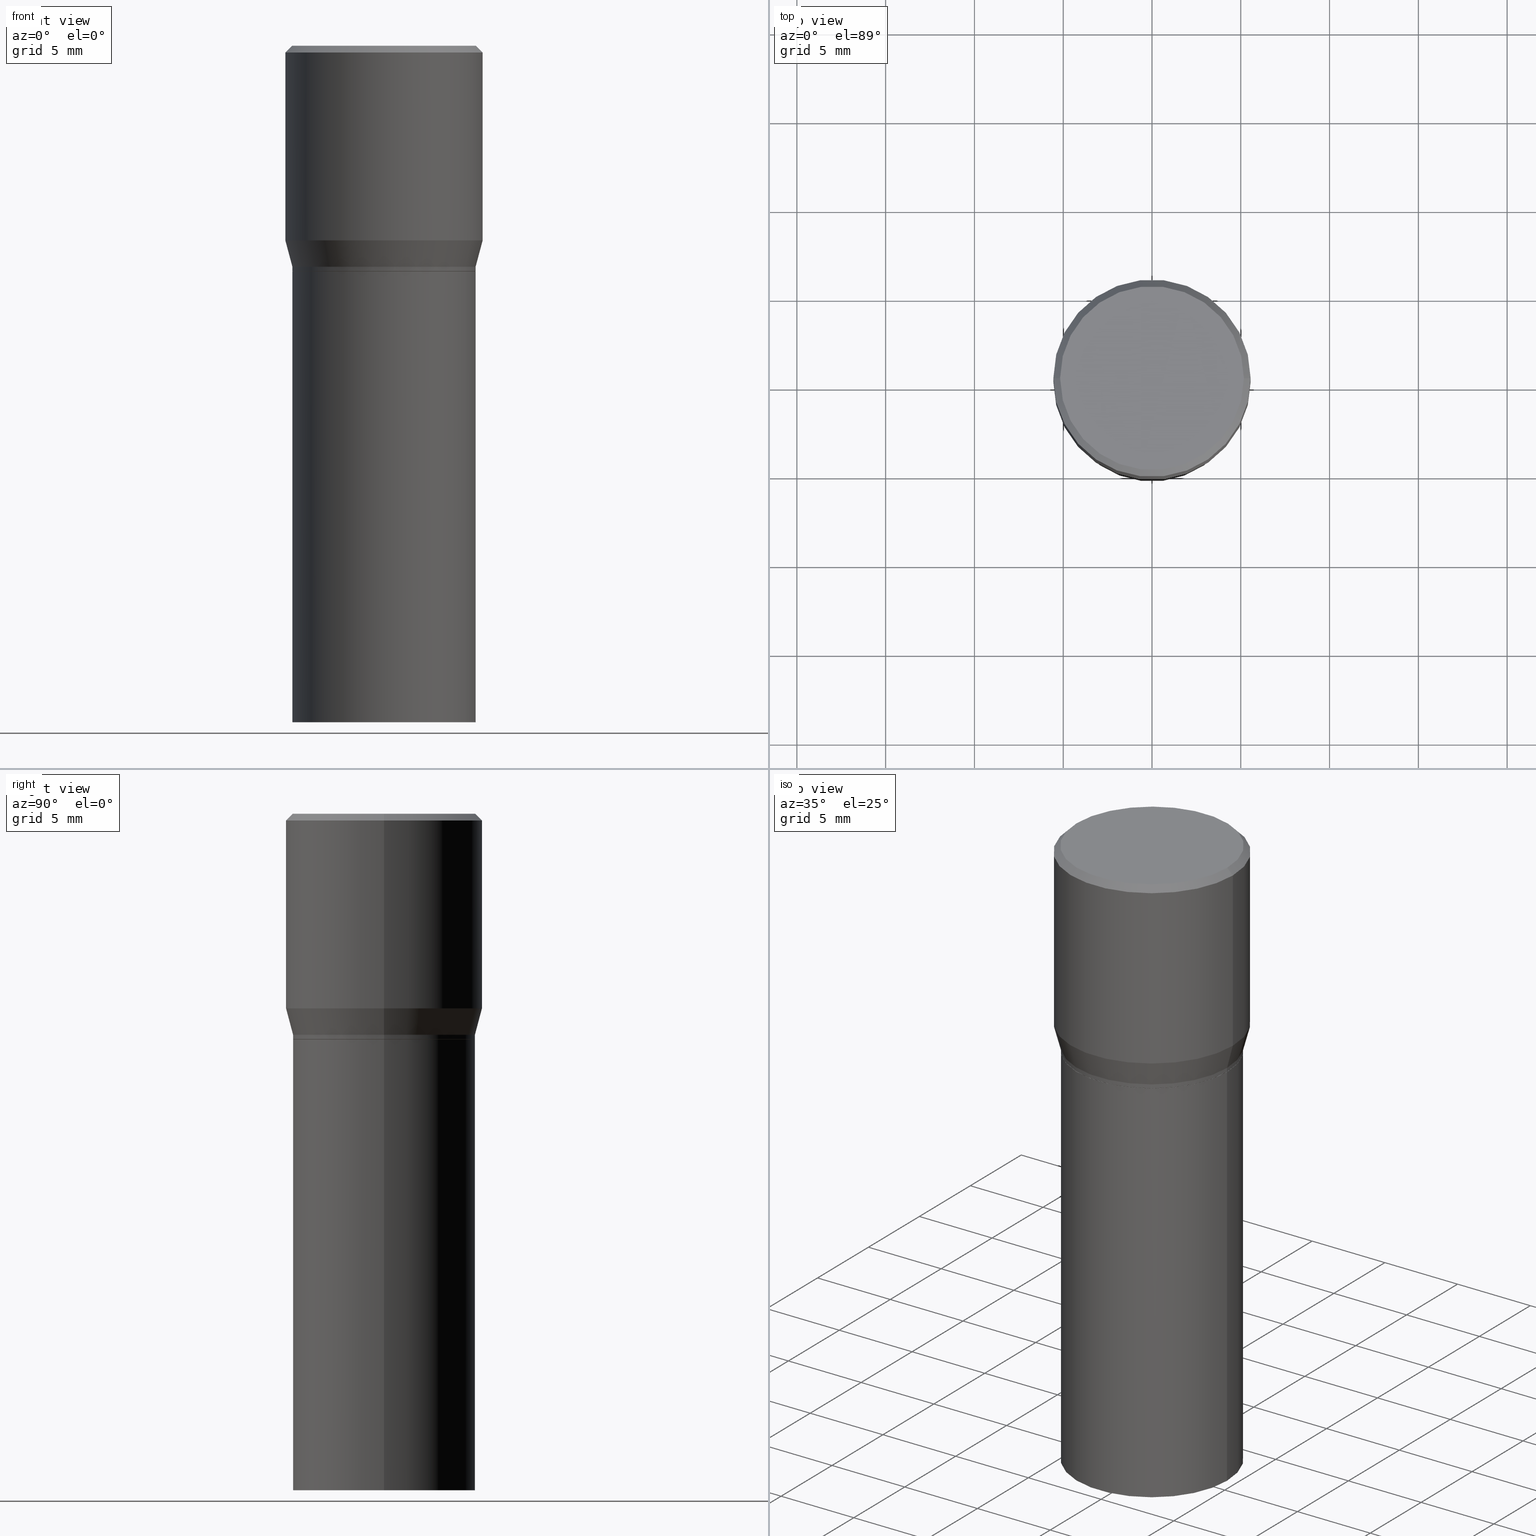
[diagram: canonical four-view strip — front | top / right | iso, engineering-drawing reading convention]
A machine part, canonical four-view strip (front | top / right | iso — engineering-drawing reading convention). The complete STEP part file that produces these views, byte-faithful:
ISO-10303-21;
HEADER;
FILE_DESCRIPTION (( 'STEP AP203' ),
    '1' );
FILE_NAME ('30836.STEP',
    '2024-03-13T16:26:33',
    ( '' ),
    ( '' ),
    'SwSTEP 2.0',
    'SolidWorks 2023',
    '' );
FILE_SCHEMA (( 'CONFIG_CONTROL_DESIGN' ));
ENDSEC;

DATA;
#1 =( LENGTH_UNIT ( ) NAMED_UNIT ( * ) SI_UNIT ( $, .METRE. ) );
#2 = CLOSED_SHELL ( 'NONE', ( #76, #422, #201, #74 ) ) ;
#3 = AXIS2_PLACEMENT_3D ( 'NONE', #270, #342, #61 ) ;
#4 = DIRECTION ( 'NONE',  ( -0.7071067811865715536, 7.493145998870439357E-15, 0.7071067811865232589 ) ) ;
#5 = EDGE_CURVE ( 'NONE', #212, #157, #329, .T. ) ;
#6 = DIRECTION ( 'NONE',  ( -2.445468806185136877E-29, 3.491481338843145188E-15, 1.000000000000000000 ) ) ;
#7 = APPROVAL_ROLE ( '' ) ;
#8 = ORIENTED_EDGE ( 'NONE', *, *, #377, .T. ) ;
#9 = DIRECTION ( 'NONE',  ( -2.445468806185136877E-29, 3.491481338843145188E-15, 1.000000000000000000 ) ) ;
#10 = DIRECTION ( 'NONE',  ( 2.438088387897960049E-29, -3.491481338843145188E-15, -1.000000000000000000 ) ) ;
#11 = AXIS2_PLACEMENT_3D ( 'NONE', #58, #96, #267 ) ;
#12 = EDGE_CURVE ( 'NONE', #157, #235, #120, .T. ) ;
#13 = EDGE_CURVE ( 'NONE', #314, #408, #406, .T. ) ;
#14 = PERSON_AND_ORGANIZATION ( #300, #444 ) ;
#15 = CARTESIAN_POINT ( 'NONE',  ( -0.2031000000000000028, -2.048369042514382480E-15, -0.5000000000000001110 ) ) ;
#16 = FACE_OUTER_BOUND ( 'NONE', #348, .T. ) ;
#17 = VECTOR ( 'NONE', #394, 39.37007874015748143 ) ;
#18 = LINE ( 'NONE', #168, #293 ) ;
#19 = LINE ( 'NONE', #447, #87 ) ;
#20 = DIRECTION ( 'NONE',  ( -1.000000000000000000, 6.982962677686266711E-15, 0.000000000000000000 ) ) ;
#21 = ORIENTED_EDGE ( 'NONE', *, *, #139, .F. ) ;
#22 = DIRECTION ( 'NONE',  ( -1.000000000000000000, 6.982962677686266711E-15, 0.000000000000000000 ) ) ;
#23 = CARTESIAN_POINT ( 'NONE',  ( 1.222734403092568719E-29, -1.745740669421573186E-15, -0.5000000000000001110 ) ) ;
#24 = VERTEX_POINT ( 'NONE', #15 ) ;
#25 = DIRECTION ( 'NONE',  ( 0.7071067811865715536, -2.468850131082509496E-15, 0.7071067811865232589 ) ) ;
#26 = EDGE_LOOP ( 'NONE', ( #286, #279, #188, #428 ) ) ;
#27 = DIRECTION ( 'NONE',  ( 1.000000000000000000, -6.982962677686266711E-15, 0.000000000000000000 ) ) ;
#28 = MECHANICAL_CONTEXT ( 'NONE', #184, 'mechanical' ) ;
#29 = DIRECTION ( 'NONE',  ( 1.000000000000000000, -6.982962677686265922E-15, 0.000000000000000000 ) ) ;
#30 = CIRCLE ( 'NONE', #39, 0.2031000000000000028 ) ;
#31 =( NAMED_UNIT ( * ) SI_UNIT ( $, .STERADIAN. ) SOLID_ANGLE_UNIT ( ) );
#32 = PLANE ( 'NONE',  #47 ) ;
#33 = CARTESIAN_POINT ( 'NONE',  ( 3.576687321579069994E-29, -5.368277968210015545E-15, -1.500000000000000222 ) ) ;
#34 = DIRECTION ( 'NONE',  ( -2.445468806185136597E-29, 3.491481338843145583E-15, 1.000000000000000000 ) ) ;
#35 = ORIENTED_EDGE ( 'NONE', *, *, #49, .T. ) ;
#36 = ORIENTED_EDGE ( 'NONE', *, *, #13, .F. ) ;
#37 = DIRECTION ( 'NONE',  ( 1.000000000000000000, -6.982962677686265922E-15, 4.876176775795935793E-29 ) ) ;
#38 = VECTOR ( 'NONE', #412, 39.37007874015748854 ) ;
#39 = AXIS2_PLACEMENT_3D ( 'NONE', #315, #54, #387 ) ;
#40 = ORIENTED_EDGE ( 'NONE', *, *, #126, .F. ) ;
#41 = FACE_OUTER_BOUND ( 'NONE', #272, .T. ) ;
#42 = PERSON_AND_ORGANIZATION_ROLE ( 'creator' ) ;
#43 = DIRECTION ( 'NONE',  ( 1.000000000000000000, -6.982962677686266711E-15, 0.000000000000000000 ) ) ;
#44 = COORDINATED_UNIVERSAL_TIME_OFFSET ( 5, 0, .BEHIND. ) ;
#45 = CARTESIAN_POINT ( 'NONE',  ( 1.221511668689476057E-29, -1.743994928752151682E-15, -0.4995000000000001661 ) ) ;
#46 = DIRECTION ( 'NONE',  ( -1.000000000000000000, 6.982962677686265922E-15, -4.876176775795935793E-29 ) ) ;
#47 = AXIS2_PLACEMENT_3D ( 'NONE', #23, #62, #313 ) ;
#48 = APPROVAL_STATUS ( 'not_yet_approved' ) ;
#49 = EDGE_CURVE ( 'NONE', #212, #97, #306, .T. ) ;
#50 = LINE ( 'NONE', #228, #449 ) ;
#51 = COORDINATED_UNIVERSAL_TIME_OFFSET ( 5, 0, .BEHIND. ) ;
#52 = LOCAL_TIME ( 12, 26, 33.00000000000000000, #44 ) ;
#53 = CARTESIAN_POINT ( 'NONE',  ( 0.2037499999999999867, -1.475466312070559275E-15, 1.060151966214670170E-16 ) ) ;
#54 = DIRECTION ( 'NONE',  ( -2.445468806185136597E-29, 3.491481338843145583E-15, 1.000000000000000000 ) ) ;
#55 = ORIENTED_EDGE ( 'NONE', *, *, #86, .F. ) ;
#56 = DIRECTION ( 'NONE',  ( -2.445468806185136597E-29, 3.491481338843145583E-15, 1.000000000000000000 ) ) ;
#57 = EDGE_LOOP ( 'NONE', ( #319, #137, #344, #351 ) ) ;
#58 = CARTESIAN_POINT ( 'NONE',  ( 1.198279715030717173E-29, -1.710825856033141537E-15, -0.4900000000000001021 ) ) ;
#59 = ADVANCED_FACE ( 'NONE', ( #292 ), #442, .T. ) ;
#60 = EDGE_LOOP ( 'NONE', ( #133, #282, #65, #78 ) ) ;
#61 = DIRECTION ( 'NONE',  ( 1.000000000000000000, -6.982962677686264344E-15, 0.000000000000000000 ) ) ;
#62 = DIRECTION ( 'NONE',  ( -2.438088387897960049E-29, 3.491481338843145188E-15, 1.000000000000000000 ) ) ;
#63 = ORIENTED_EDGE ( 'NONE', *, *, #310, .T. ) ;
#64 = LOCAL_TIME ( 12, 26, 33.00000000000000000, #51 ) ;
#65 = ORIENTED_EDGE ( 'NONE', *, *, #121, .F. ) ;
#66 =( NAMED_UNIT ( * ) PLANE_ANGLE_UNIT ( ) SI_UNIT ( $, .RADIAN. ) );
#67 = LINE ( 'NONE', #176, #337 ) ;
#68 = FACE_OUTER_BOUND ( 'NONE', #107, .T. ) ;
#69 = AXIS2_PLACEMENT_3D ( 'NONE', #102, #72, #219 ) ;
#70 = CARTESIAN_POINT ( 'NONE',  ( 3.668203209277705088E-31, -5.237222008264718399E-17, -0.01499999999999999944 ) ) ;
#71 = EDGE_CURVE ( 'NONE', #408, #131, #50, .T. ) ;
#72 = DIRECTION ( 'NONE',  ( -2.445468806185136597E-29, 3.491481338843145583E-15, 1.000000000000000000 ) ) ;
#73 = ORIENTED_EDGE ( 'NONE', *, *, #307, .T. ) ;
#74 = ADVANCED_FACE ( 'NONE', ( #299 ), #164, .F. ) ;
#75 = AXIS2_PLACEMENT_3D ( 'NONE', #141, #151, #401 ) ;
#76 = ADVANCED_FACE ( 'NONE', ( #16 ), #125, .T. ) ;
#77 = VERTEX_POINT ( 'NONE', #163 ) ;
#78 = ORIENTED_EDGE ( 'NONE', *, *, #124, .F. ) ;
#79 = PERSON_AND_ORGANIZATION ( #300, #444 ) ;
#80 = EDGE_CURVE ( 'NONE', #371, #157, #247, .T. ) ;
#81 = AXIS2_PLACEMENT_3D ( 'NONE', #226, #83, #381 ) ;
#82 = PERSON_AND_ORGANIZATION ( #300, #444 ) ;
#83 = DIRECTION ( 'NONE',  ( -2.445468806185136597E-29, 3.491481338843145583E-15, 1.000000000000000000 ) ) ;
#84 = APPROVAL_DATE_TIME ( #418, #208 ) ;
#85 = DIRECTION ( 'NONE',  ( 1.000000000000000000, -6.982962677686266711E-15, 4.876176775795935793E-29 ) ) ;
#86 = EDGE_CURVE ( 'NONE', #235, #182, #368, .T. ) ;
#87 = VECTOR ( 'NONE', #127, 39.37007874015748143 ) ;
#88 = AXIS2_PLACEMENT_3D ( 'NONE', #156, #373, #118 ) ;
#89 = CIRCLE ( 'NONE', #177, 0.2026000000000000023 ) ;
#90 = DIRECTION ( 'NONE',  ( -2.445468806185136597E-29, 3.491481338843145583E-15, 1.000000000000000000 ) ) ;
#91 = ADVANCED_FACE ( 'NONE', ( #432 ), #32, .F. ) ;
#92 = DIRECTION ( 'NONE',  ( 0.7071067811865452413, -7.319954787623248157E-15, -0.7071067811865497932 ) ) ;
#93 = CARTESIAN_POINT ( 'NONE',  ( -0.2031000000000000028, 1.443112296328763497E-15, -9.990357168307714203E-30 ) ) ;
#94 = AXIS2_PLACEMENT_3D ( 'NONE', #439, #122, #263 ) ;
#95 = LOCAL_TIME ( 12, 26, 33.00000000000000000, #154 ) ;
#96 = DIRECTION ( 'NONE',  ( -2.445468806185136597E-29, 3.491481338843145583E-15, 1.000000000000000000 ) ) ;
#97 = VERTEX_POINT ( 'NONE', #100 ) ;
#98 = EDGE_LOOP ( 'NONE', ( #223, #327 ) ) ;
#99 = FACE_OUTER_BOUND ( 'NONE', #364, .T. ) ;
#100 = CARTESIAN_POINT ( 'NONE',  ( -0.2031000000000000028, -3.008826324233883330E-16, -0.4995000000000001661 ) ) ;
#101 = CC_DESIGN_DATE_AND_TIME_ASSIGNMENT ( #123, #415, ( #366 ) ) ;
#102 = CARTESIAN_POINT ( 'NONE',  ( 1.222734403092568719E-29, -1.745740669421573186E-15, -0.5000000000000001110 ) ) ;
#103 = DIRECTION ( 'NONE',  ( -2.445468806185136597E-29, 3.491481338843145583E-15, 1.000000000000000000 ) ) ;
#104 = DIRECTION ( 'NONE',  ( 1.000000000000000000, 0.000000000000000000, 0.000000000000000000 ) ) ;
#105 = CIRCLE ( 'NONE', #138, 0.2031000000000000028 ) ;
#106 = CARTESIAN_POINT ( 'NONE',  ( 0.2031000000000000028, -3.163980389259653764E-15, -0.5000000000000001110 ) ) ;
#107 = EDGE_LOOP ( 'NONE', ( #172, #309, #150, #8 ) ) ;
#108 = CARTESIAN_POINT ( 'NONE',  ( 0.2031000000000000028, -6.655461728102798952E-15, -1.500000000000000222 ) ) ;
#109 = DIMENSIONAL_EXPONENTS ( 1.000000000000000000, 0.000000000000000000, 0.000000000000000000, 0.000000000000000000, 0.000000000000000000, 0.000000000000000000, 0.000000000000000000 ) ;
#110 = DIRECTION ( 'NONE',  ( 1.000000000000000000, -6.982962677686266711E-15, 4.876176775795935232E-29 ) ) ;
#111 = CARTESIAN_POINT ( 'NONE',  ( 0.000000000000000000, 0.000000000000000000, 0.000000000000000000 ) ) ;
#112 = CARTESIAN_POINT ( 'NONE',  ( -0.2031000000000000028, -2.048369042514382480E-15, -1.500000000000000222 ) ) ;
#113 = ORIENTED_EDGE ( 'NONE', *, *, #363, .T. ) ;
#114 = CIRCLE ( 'NONE', #416, 0.2037499999999999867 ) ;
#115 = AXIS2_PLACEMENT_3D ( 'NONE', #70, #324, #20 ) ;
#116 = CARTESIAN_POINT ( 'NONE',  ( -0.2187500000000000000, 1.554312234475219157E-15, -1.076017050993260622E-29 ) ) ;
#117 = APPROVAL_STATUS ( 'not_yet_approved' ) ;
#118 = DIRECTION ( 'NONE',  ( 1.000000000000000000, -6.982962677686266711E-15, 4.875065411617369217E-29 ) ) ;
#119 = PERSON_AND_ORGANIZATION ( #300, #444 ) ;
#120 = LINE ( 'NONE', #446, #38 ) ;
#121 = EDGE_CURVE ( 'NONE', #77, #131, #463, .T. ) ;
#122 = DIRECTION ( 'NONE',  ( -2.445468806185136597E-29, 3.491481338843145583E-15, 1.000000000000000000 ) ) ;
#123 = DATE_AND_TIME ( #195, #170 ) ;
#124 = EDGE_CURVE ( 'NONE', #235, #77, #67, .T. ) ;
#125 = CYLINDRICAL_SURFACE ( 'NONE', #240, 0.2031000000000000028 ) ;
#126 = EDGE_CURVE ( 'NONE', #146, #24, #105, .T. ) ;
#127 = DIRECTION ( 'NONE',  ( -2.445468806185136877E-29, 3.491481338843145188E-15, 1.000000000000000000 ) ) ;
#128 = ORIENTED_EDGE ( 'NONE', *, *, #302, .T. ) ;
#129 = CIRCLE ( 'NONE', #75, 0.2187500000000000000 ) ;
#130 = CARTESIAN_POINT ( 'NONE',  ( -0.2031000000000000583, -1.101508221355132898E-16, -0.4900000000000001021 ) ) ;
#131 = VERTEX_POINT ( 'NONE', #466 ) ;
#132 = FACE_OUTER_BOUND ( 'NONE', #161, .T. ) ;
#133 = ORIENTED_EDGE ( 'NONE', *, *, #86, .T. ) ;
#134 = ORIENTED_EDGE ( 'NONE', *, *, #71, .F. ) ;
#135 = FACE_OUTER_BOUND ( 'NONE', #424, .T. ) ;
#136 = DIRECTION ( 'NONE',  ( -2.445468806185136877E-29, 3.491481338843145188E-15, 1.000000000000000000 ) ) ;
#137 = ORIENTED_EDGE ( 'NONE', *, *, #80, .T. ) ;
#138 = AXIS2_PLACEMENT_3D ( 'NONE', #275, #355, #29 ) ;
#139 = EDGE_CURVE ( 'NONE', #97, #212, #378, .T. ) ;
#140 = AXIS2_PLACEMENT_3D ( 'NONE', #111, #281, #216 ) ;
#141 = CARTESIAN_POINT ( 'NONE',  ( 1.055448208544146876E-29, -1.506900319041867721E-15, -0.4315934048615475138 ) ) ;
#142 = EDGE_LOOP ( 'NONE', ( #397, #185, #360, #382 ) ) ;
#143 = APPLICATION_CONTEXT ( 'configuration controlled 3d designs of mechanical parts and assemblies' ) ;
#144 = DIRECTION ( 'NONE',  ( -2.445468806185136597E-29, 3.491481338843145583E-15, 1.000000000000000000 ) ) ;
#145 = CARTESIAN_POINT ( 'NONE',  ( 1.221511668689476057E-29, -1.743994928752151682E-15, -0.4995000000000001661 ) ) ;
#146 = VERTEX_POINT ( 'NONE', #106 ) ;
#147 = ADVANCED_FACE ( 'NONE', ( #215 ), #464, .T. ) ;
#148 = EDGE_CURVE ( 'NONE', #182, #131, #190, .T. ) ;
#149 = VECTOR ( 'NONE', #414, 39.37007874015748143 ) ;
#150 = ORIENTED_EDGE ( 'NONE', *, *, #71, .T. ) ;
#151 = DIRECTION ( 'NONE',  ( -2.445468806185136597E-29, 3.491481338843145583E-15, 1.000000000000000000 ) ) ;
#152 = FACE_OUTER_BOUND ( 'NONE', #26, .T. ) ;
#153 = ORIENTED_EDGE ( 'NONE', *, *, #302, .F. ) ;
#154 = COORDINATED_UNIVERSAL_TIME_OFFSET ( 5, 0, .BEHIND. ) ;
#155 = ORIENTED_EDGE ( 'NONE', *, *, #259, .T. ) ;
#156 = CARTESIAN_POINT ( 'NONE',  ( -2.592568563193567003E-45, 3.701500806376036554E-31, 1.060151966214568974E-16 ) ) ;
#157 = VERTEX_POINT ( 'NONE', #370 ) ;
#158 = APPROVAL_ROLE ( '' ) ;
#159 = CONICAL_SURFACE ( 'NONE', #11, 0.2031000000000000583, 0.2617993877991499074 ) ;
#160 = CIRCLE ( 'NONE', #248, 0.2187500000000000000 ) ;
#161 = EDGE_LOOP ( 'NONE', ( #35, #461, #174, #453 ) ) ;
#162 = APPROVAL_DATE_TIME ( #440, #265 ) ;
#163 = CARTESIAN_POINT ( 'NONE',  ( 0.2187500000000000000, -1.579895305826517922E-15, -0.01499999999999999944 ) ) ;
#164 = PLANE ( 'NONE',  #297 ) ;
#165 = CALENDAR_DATE ( 2024, 13, 3 ) ;
#166 = APPROVAL_PERSON_ORGANIZATION ( #82, #367, #158 ) ;
#167 = ADVANCED_FACE ( 'NONE', ( #152 ), #287, .T. ) ;
#168 = CARTESIAN_POINT ( 'NONE',  ( 0.2187500000000000000, -1.553106157095169608E-15, -0.01499999999999999944 ) ) ;
#169 = DIRECTION ( 'NONE',  ( -0.2588190451025211836, 5.211531920934547886E-15, 0.9659258262890679791 ) ) ;
#170 = LOCAL_TIME ( 12, 26, 33.00000000000000000, #332 ) ;
#171 = CARTESIAN_POINT ( 'NONE',  ( 1.222734403092568719E-29, -1.745740669421573186E-15, -0.5000000000000001110 ) ) ;
#172 = ORIENTED_EDGE ( 'NONE', *, *, #339, .F. ) ;
#173 = LINE ( 'NONE', #93, #149 ) ;
#174 = ORIENTED_EDGE ( 'NONE', *, *, #192, .F. ) ;
#175 = CARTESIAN_POINT ( 'NONE',  ( 1.198279715030717173E-29, -1.710825856033141537E-15, -0.4900000000000001021 ) ) ;
#176 = CARTESIAN_POINT ( 'NONE',  ( 0.2187500000000000000, -1.527523085743870843E-15, 1.066663669705360885E-29 ) ) ;
#177 = AXIS2_PLACEMENT_3D ( 'NONE', #328, #321, #405 ) ;
#178 = LOCAL_TIME ( 12, 26, 33.00000000000000000, #191 ) ;
#179 = AXIS2_PLACEMENT_3D ( 'NONE', #278, #245, #372 ) ;
#180 = DIRECTION ( 'NONE',  ( 1.000000000000000000, -6.982962677686266711E-15, 0.000000000000000000 ) ) ;
#181 = VERTEX_POINT ( 'NONE', #112 ) ;
#182 = VERTEX_POINT ( 'NONE', #330 ) ;
#183 = ADVANCED_FACE ( 'NONE', ( #68 ), #291, .T. ) ;
#184 = APPLICATION_CONTEXT ( 'configuration controlled 3d designs of mechanical parts and assemblies' ) ;
#185 = ORIENTED_EDGE ( 'NONE', *, *, #139, .T. ) ;
#186 = MANIFOLD_SOLID_BREP ( 'Body-Move/Copy2[1]', #2 ) ;
#187 = MANIFOLD_SOLID_BREP ( 'Body-Move/Copy2[2]', #323 ) ;
#188 = ORIENTED_EDGE ( 'NONE', *, *, #124, .T. ) ;
#189 = CYLINDRICAL_SURFACE ( 'NONE', #338, 0.2187500000000000000 ) ;
#190 = LINE ( 'NONE', #116, #384 ) ;
#191 = COORDINATED_UNIVERSAL_TIME_OFFSET ( 5, 0, .BEHIND. ) ;
#192 = EDGE_CURVE ( 'NONE', #157, #371, #318, .T. ) ;
#193 = PERSON_AND_ORGANIZATION_ROLE ( 'classification_officer' ) ;
#194 = CARTESIAN_POINT ( 'NONE',  ( 0.000000000000000000, 0.000000000000000000, 0.000000000000000000 ) ) ;
#195 = CALENDAR_DATE ( 2024, 13, 3 ) ;
#196 = APPLICATION_PROTOCOL_DEFINITION ( 'international standard', 'config_control_design', 1994, #143 ) ;
#197 = PRODUCT_DEFINITION_FORMATION_WITH_SPECIFIED_SOURCE ( 'ANY', '', #347, .NOT_KNOWN. ) ;
#198 = CARTESIAN_POINT ( 'NONE',  ( -2.592568563193567003E-45, 3.701500806376036554E-31, 1.060151966214568974E-16 ) ) ;
#199 = UNCERTAINTY_MEASURE_WITH_UNIT (LENGTH_MEASURE( 1.000000000000000082E-05 ), #399, 'distance_accuracy_value', 'NONE');
#200 = DIRECTION ( 'NONE',  ( 2.438088387897960049E-29, -3.491481338843145188E-15, -1.000000000000000000 ) ) ;
#201 = ADVANCED_FACE ( 'NONE', ( #135 ), #426, .T. ) ;
#202 = CARTESIAN_POINT ( 'NONE',  ( 3.668203209277705088E-31, -5.237222008264718399E-17, -0.01499999999999999944 ) ) ;
#203 = AXIS2_PLACEMENT_3D ( 'NONE', #262, #349, #22 ) ;
#204 = DIRECTION ( 'NONE',  ( -1.000000000000000000, 6.982962677686265922E-15, -4.876176775795935793E-29 ) ) ;
#205 = ORIENTED_EDGE ( 'NONE', *, *, #459, .T. ) ;
#206 = DIRECTION ( 'NONE',  ( 1.000000000000000000, -6.982962677686268288E-15, 0.000000000000000000 ) ) ;
#207 = ORIENTED_EDGE ( 'NONE', *, *, #259, .F. ) ;
#208 = APPROVAL ( #295, 'UNSPECIFIED' ) ;
#209 = LENGTH_MEASURE_WITH_UNIT ( LENGTH_MEASURE( 0.02539999999999999897 ), #1 );
#210 = ORIENTED_EDGE ( 'NONE', *, *, #12, .F. ) ;
#211 = DIRECTION ( 'NONE',  ( -2.445468806185136597E-29, 3.491481338843145583E-15, 1.000000000000000000 ) ) ;
#212 = VERTEX_POINT ( 'NONE', #305 ) ;
#213 = APPLICATION_PROTOCOL_DEFINITION ( 'international standard', 'config_control_design', 1994, #184 ) ;
#214 = CC_DESIGN_DATE_AND_TIME_ASSIGNMENT ( #331, #438, ( #462 ) ) ;
#215 = FACE_OUTER_BOUND ( 'NONE', #239, .T. ) ;
#216 = DIRECTION ( 'NONE',  ( 1.000000000000000000, -6.982962677686266711E-15, 4.876176775795935793E-29 ) ) ;
#217 = DIRECTION ( 'NONE',  ( 1.000000000000000000, -6.982962677686268288E-15, 0.000000000000000000 ) ) ;
#218 = CC_DESIGN_APPROVAL ( #208, ( #366 ) ) ;
#219 = DIRECTION ( 'NONE',  ( 1.000000000000000000, -6.982962677686265922E-15, 0.000000000000000000 ) ) ;
#220 = AXIS2_PLACEMENT_3D ( 'NONE', #457, #211, #27 ) ;
#221 = CIRCLE ( 'NONE', #3, 0.2031000000000000028 ) ;
#222 = PERSON_AND_ORGANIZATION ( #300, #444 ) ;
#223 = ORIENTED_EDGE ( 'NONE', *, *, #126, .T. ) ;
#224 = CALENDAR_DATE ( 2024, 13, 3 ) ;
#225 = ADVANCED_FACE ( 'NONE', ( #132 ), #423, .T. ) ;
#226 = CARTESIAN_POINT ( 'NONE',  ( 1.222734403092568719E-29, -1.745740669421573186E-15, -0.5000000000000001110 ) ) ;
#227 = PERSON_AND_ORGANIZATION_ROLE ( 'creator' ) ;
#228 = CARTESIAN_POINT ( 'NONE',  ( -0.2187500000000000000, 1.475150865661223567E-15, -0.01499999999999999944 ) ) ;
#229 = CC_DESIGN_PERSON_AND_ORGANIZATION_ASSIGNMENT ( #14, #42, ( #462 ) ) ;
#230 = LINE ( 'NONE', #421, #346 ) ;
#231 = VECTOR ( 'NONE', #4, 39.37007874015748854 ) ;
#232 = AXIS2_PLACEMENT_3D ( 'NONE', #379, #334, #110 ) ;
#233 = DIRECTION ( 'NONE',  ( -0.7071067811865452413, 2.468850131082233000E-15, -0.7071067811865497932 ) ) ;
#234 = CARTESIAN_POINT ( 'NONE',  ( 0.000000000000000000, 0.000000000000000000, 0.000000000000000000 ) ) ;
#235 = VERTEX_POINT ( 'NONE', #392 ) ;
#236 = DIRECTION ( 'NONE',  ( 1.000000000000000000, -6.982962677686266711E-15, 4.875065411617369217E-29 ) ) ;
#237 = ADVANCED_FACE ( 'NONE', ( #451 ), #269, .T. ) ;
#238 = CARTESIAN_POINT ( 'NONE',  ( 0.000000000000000000, 0.000000000000000000, 0.000000000000000000 ) ) ;
#239 = EDGE_LOOP ( 'NONE', ( #465, #205, #63, #21 ) ) ;
#240 = AXIS2_PLACEMENT_3D ( 'NONE', #194, #419, #333 ) ;
#241 = AXIS2_PLACEMENT_3D ( 'NONE', #234, #308, #85 ) ;
#242 = CARTESIAN_POINT ( 'NONE',  ( 1.422778645578576487E-15, 0.2037499999999999867, -6.583817244785623957E-16 ) ) ;
#243 = DIRECTION ( 'NONE',  ( 1.000000000000000000, -6.982962677686265133E-15, 0.000000000000000000 ) ) ;
#244 = ORIENTED_EDGE ( 'NONE', *, *, #307, .F. ) ;
#245 = DIRECTION ( 'NONE',  ( -2.445468806185136597E-29, 3.491481338843145583E-15, 1.000000000000000000 ) ) ;
#246 = DIRECTION ( 'NONE',  ( 1.000000000000000000, -6.982962677686266711E-15, 0.000000000000000000 ) ) ;
#247 = CIRCLE ( 'NONE', #94, 0.2031000000000000583 ) ;
#248 = AXIS2_PLACEMENT_3D ( 'NONE', #202, #144, #180 ) ;
#249 = PERSON_AND_ORGANIZATION ( #300, #444 ) ;
#250 = DIRECTION ( 'NONE',  ( -2.438088387897960049E-29, 3.491481338843145188E-15, 1.000000000000000000 ) ) ;
#251 = CARTESIAN_POINT ( 'NONE',  ( 1.222734403092568719E-29, -1.745740669421573186E-15, -0.5000000000000001110 ) ) ;
#252 = VERTEX_POINT ( 'NONE', #271 ) ;
#253 = DIRECTION ( 'NONE',  ( 1.000000000000000000, -6.982962677686266711E-15, 4.876176775795935232E-29 ) ) ;
#254 = EDGE_CURVE ( 'NONE', #97, #371, #173, .T. ) ;
#255 = EDGE_LOOP ( 'NONE', ( #36, #402, #395, #134 ) ) ;
#256 = VERTEX_POINT ( 'NONE', #303 ) ;
#257 = AXIS2_PLACEMENT_3D ( 'NONE', #145, #103, #246 ) ;
#258 = AXIS2_PLACEMENT_3D ( 'NONE', #242, #200, #204 ) ;
#259 = EDGE_CURVE ( 'NONE', #181, #388, #30, .T. ) ;
#260 = ORIENTED_EDGE ( 'NONE', *, *, #13, .T. ) ;
#261 = PERSON_AND_ORGANIZATION ( #300, #444 ) ;
#262 = CARTESIAN_POINT ( 'NONE',  ( 3.668203209277705088E-31, -5.237222008264718399E-17, -0.01499999999999999944 ) ) ;
#263 = DIRECTION ( 'NONE',  ( 1.000000000000000000, -6.982962677686265922E-15, 0.000000000000000000 ) ) ;
#264 = APPROVAL_DATE_TIME ( #410, #367 ) ;
#265 = APPROVAL ( #48, 'UNSPECIFIED' ) ;
#266 = AXIS2_PLACEMENT_3D ( 'NONE', #33, #250, #37 ) ;
#267 = DIRECTION ( 'NONE',  ( 1.000000000000000000, -6.982962677686265922E-15, 0.000000000000000000 ) ) ;
#268 = CC_DESIGN_APPROVAL ( #367, ( #197 ) ) ;
#269 = CONICAL_SURFACE ( 'NONE', #203, 0.2187500000000000000, 0.7853981633974450594 ) ;
#270 = CARTESIAN_POINT ( 'NONE',  ( 3.668203209277704895E-29, -5.237222008264718177E-15, -1.500000000000000222 ) ) ;
#271 = CARTESIAN_POINT ( 'NONE',  ( 0.2026000000000000023, -3.160488907920811151E-15, -0.5000000000000001110 ) ) ;
#272 = EDGE_LOOP ( 'NONE', ( #153, #207 ) ) ;
#273 = DIRECTION ( 'NONE',  ( 1.000000000000000000, -6.982962677686266711E-15, 4.876176775795935793E-29 ) ) ;
#274 = CC_DESIGN_PERSON_AND_ORGANIZATION_ASSIGNMENT ( #79, #380, ( #197 ) ) ;
#275 = CARTESIAN_POINT ( 'NONE',  ( 1.222734403092568719E-29, -1.745740669421573186E-15, -0.5000000000000001110 ) ) ;
#276 = EDGE_LOOP ( 'NONE', ( #244, #430 ) ) ;
#277 = VECTOR ( 'NONE', #169, 39.37007874015748854 ) ;
#278 = CARTESIAN_POINT ( 'NONE',  ( 1.198279715030717173E-29, -1.710825856033141537E-15, -0.4900000000000001021 ) ) ;
#279 = ORIENTED_EDGE ( 'NONE', *, *, #398, .T. ) ;
#280 = ADVANCED_FACE ( 'NONE', ( #343 ), #159, .T. ) ;
#281 = DIRECTION ( 'NONE',  ( -2.445468806185136597E-29, 3.491481338843145583E-15, 1.000000000000000000 ) ) ;
#282 = ORIENTED_EDGE ( 'NONE', *, *, #148, .T. ) ;
#283 = FACE_OUTER_BOUND ( 'NONE', #142, .T. ) ;
#284 = ADVANCED_BREP_SHAPE_REPRESENTATION ( '30836', ( #186, #187, #393 ), #400 ) ;
#285 = DIRECTION ( 'NONE',  ( -2.445468806185136597E-29, 3.491481338843145583E-15, 1.000000000000000000 ) ) ;
#286 = ORIENTED_EDGE ( 'NONE', *, *, #148, .F. ) ;
#287 = CYLINDRICAL_SURFACE ( 'NONE', #232, 0.2187500000000000000 ) ;
#288 = ADVANCED_FACE ( 'NONE', ( #385 ), #450, .F. ) ;
#289 = ORIENTED_EDGE ( 'NONE', *, *, #301, .F. ) ;
#290 = CALENDAR_DATE ( 2024, 13, 3 ) ;
#291 = CONICAL_SURFACE ( 'NONE', #115, 0.2187500000000000000, 0.7853981633974450594 ) ;
#292 = FACE_OUTER_BOUND ( 'NONE', #458, .T. ) ;
#293 = VECTOR ( 'NONE', #92, 39.37007874015748143 ) ;
#294 = SHAPE_DEFINITION_REPRESENTATION ( #429, #284 ) ;
#295 = APPROVAL_STATUS ( 'not_yet_approved' ) ;
#296 = APPROVAL_PERSON_ORGANIZATION ( #119, #208, #443 ) ;
#297 = AXIS2_PLACEMENT_3D ( 'NONE', #441, #10, #46 ) ;
#298 = APPROVAL_PERSON_ORGANIZATION ( #375, #265, #7 ) ;
#299 = FACE_OUTER_BOUND ( 'NONE', #98, .T. ) ;
#300 = PERSON ( 'UNSPECIFIED', 'UNSPECIFIED', 'UNSPECIFIED', ('UNSPECIFIED'), ('UNSPECIFIED'), ('UNSPECIFIED') ) ;
#301 = EDGE_CURVE ( 'NONE', #181, #24, #312, .T. ) ;
#302 = EDGE_CURVE ( 'NONE', #388, #181, #221, .T. ) ;
#303 = CARTESIAN_POINT ( 'NONE',  ( -0.2026000000000000023, -3.035318595974993861E-16, -0.5000000000000001110 ) ) ;
#304 = PRODUCT_RELATED_PRODUCT_CATEGORY ( 'detail', '', ( #347 ) ) ;
#305 = CARTESIAN_POINT ( 'NONE',  ( 0.2031000000000000028, -3.162234648590232655E-15, -0.4995000000000001661 ) ) ;
#306 = CIRCLE ( 'NONE', #317, 0.2031000000000000028 ) ;
#307 = EDGE_CURVE ( 'NONE', #252, #256, #369, .T. ) ;
#308 = DIRECTION ( 'NONE',  ( -2.445468806185136597E-29, 3.491481338843145583E-15, 1.000000000000000000 ) ) ;
#309 = ORIENTED_EDGE ( 'NONE', *, *, #336, .F. ) ;
#310 = EDGE_CURVE ( 'NONE', #252, #212, #230, .T. ) ;
#311 = ORIENTED_EDGE ( 'NONE', *, *, #192, .T. ) ;
#312 = LINE ( 'NONE', #454, #17 ) ;
#313 = DIRECTION ( 'NONE',  ( 1.000000000000000000, -6.982962677686265922E-15, 4.876176775795935793E-29 ) ) ;
#314 = VERTEX_POINT ( 'NONE', #53 ) ;
#315 = CARTESIAN_POINT ( 'NONE',  ( 3.668203209277704895E-29, -5.237222008264718177E-15, -1.500000000000000222 ) ) ;
#316 = AXIS2_PLACEMENT_3D ( 'NONE', #238, #56, #273 ) ;
#317 = AXIS2_PLACEMENT_3D ( 'NONE', #45, #417, #43 ) ;
#318 = CIRCLE ( 'NONE', #437, 0.2031000000000000583 ) ;
#319 = ORIENTED_EDGE ( 'NONE', *, *, #363, .F. ) ;
#320 = ORIENTED_EDGE ( 'NONE', *, *, #49, .F. ) ;
#321 = DIRECTION ( 'NONE',  ( -2.445468806185136597E-29, 3.491481338843145583E-15, 1.000000000000000000 ) ) ;
#322 = CC_DESIGN_SECURITY_CLASSIFICATION ( #366, ( #197 ) ) ;
#323 = CLOSED_SHELL ( 'NONE', ( #225, #59, #237, #452, #433, #280, #167, #183, #288, #91, #147, #425 ) ) ;
#324 = DIRECTION ( 'NONE',  ( 2.445468806185136597E-29, -3.491481338843145583E-15, -1.000000000000000000 ) ) ;
#325 = CARTESIAN_POINT ( 'NONE',  ( 0.000000000000000000, 0.000000000000000000, 0.000000000000000000 ) ) ;
#326 = CC_DESIGN_PERSON_AND_ORGANIZATION_ASSIGNMENT ( #222, #193, ( #366 ) ) ;
#327 = ORIENTED_EDGE ( 'NONE', *, *, #411, .T. ) ;
#328 = CARTESIAN_POINT ( 'NONE',  ( 1.222734403092568719E-29, -1.745740669421573186E-15, -0.5000000000000001110 ) ) ;
#329 = LINE ( 'NONE', #376, #427 ) ;
#330 = CARTESIAN_POINT ( 'NONE',  ( -0.2187500000000000000, 4.741191543335144142E-17, -0.4315934048615475138 ) ) ;
#331 = DATE_AND_TIME ( #165, #52 ) ;
#332 = COORDINATED_UNIVERSAL_TIME_OFFSET ( 5, 0, .BEHIND. ) ;
#333 = DIRECTION ( 'NONE',  ( 1.000000000000000000, -6.982962677686266711E-15, 4.876176775795935793E-29 ) ) ;
#334 = DIRECTION ( 'NONE',  ( -2.445468806185136597E-29, 3.491481338843145583E-15, 1.000000000000000000 ) ) ;
#335 = DESIGN_CONTEXT ( 'detailed design', #143, 'design' ) ;
#336 = EDGE_CURVE ( 'NONE', #408, #314, #114, .T. ) ;
#337 = VECTOR ( 'NONE', #136, 39.37007874015748143 ) ;
#338 = AXIS2_PLACEMENT_3D ( 'NONE', #435, #285, #253 ) ;
#339 = EDGE_CURVE ( 'NONE', #314, #77, #18, .T. ) ;
#340 = EDGE_CURVE ( 'NONE', #388, #146, #19, .T. ) ;
#341 = DIRECTION ( 'NONE',  ( -2.445468806185136597E-29, 3.491481338843145583E-15, 1.000000000000000000 ) ) ;
#342 = DIRECTION ( 'NONE',  ( -2.445468806185136597E-29, 3.491481338843145583E-15, 1.000000000000000000 ) ) ;
#343 = FACE_OUTER_BOUND ( 'NONE', #57, .T. ) ;
#344 = ORIENTED_EDGE ( 'NONE', *, *, #12, .T. ) ;
#345 = AXIS2_PLACEMENT_3D ( 'NONE', #362, #34, #243 ) ;
#346 = VECTOR ( 'NONE', #25, 39.37007874015748854 ) ;
#347 = PRODUCT ( '30836', '30836', '', ( #28 ) ) ;
#348 = EDGE_LOOP ( 'NONE', ( #128, #350, #40, #455 ) ) ;
#349 = DIRECTION ( 'NONE',  ( 2.445468806185136597E-29, -3.491481338843145583E-15, -1.000000000000000000 ) ) ;
#350 = ORIENTED_EDGE ( 'NONE', *, *, #301, .T. ) ;
#351 = ORIENTED_EDGE ( 'NONE', *, *, #398, .F. ) ;
#352 = DIRECTION ( 'NONE',  ( -2.445468806185136597E-29, 3.491481338843145583E-15, 1.000000000000000000 ) ) ;
#353 = ORIENTED_EDGE ( 'NONE', *, *, #411, .F. ) ;
#354 = PLANE ( 'NONE',  #266 ) ;
#355 = DIRECTION ( 'NONE',  ( -2.445468806185136597E-29, 3.491481338843145583E-15, 1.000000000000000000 ) ) ;
#356 = CIRCLE ( 'NONE', #69, 0.2031000000000000028 ) ;
#357 = AXIS2_PLACEMENT_3D ( 'NONE', #251, #404, #217 ) ;
#358 = ORIENTED_EDGE ( 'NONE', *, *, #340, .T. ) ;
#359 = CARTESIAN_POINT ( 'NONE',  ( -0.2037499999999999867, 1.448964755619900421E-15, 1.060151966214468518E-16 ) ) ;
#360 = ORIENTED_EDGE ( 'NONE', *, *, #5, .T. ) ;
#361 = PERSON_AND_ORGANIZATION_ROLE ( 'design_owner' ) ;
#362 = CARTESIAN_POINT ( 'NONE',  ( 1.055448208544146876E-29, -1.506900319041867721E-15, -0.4315934048615475138 ) ) ;
#363 = EDGE_CURVE ( 'NONE', #371, #182, #420, .T. ) ;
#364 = EDGE_LOOP ( 'NONE', ( #311, #113, #55, #210 ) ) ;
#365 = CYLINDRICAL_SURFACE ( 'NONE', #140, 0.2031000000000000028 ) ;
#366 = SECURITY_CLASSIFICATION ( '', '', #436 ) ;
#367 = APPROVAL ( #117, 'UNSPECIFIED' ) ;
#368 = CIRCLE ( 'NONE', #345, 0.2187500000000000000 ) ;
#369 = CIRCLE ( 'NONE', #386, 0.2026000000000000023 ) ;
#370 = CARTESIAN_POINT ( 'NONE',  ( 0.2031000000000000583, -3.129065575871222509E-15, -0.4900000000000001021 ) ) ;
#371 = VERTEX_POINT ( 'NONE', #130 ) ;
#372 = DIRECTION ( 'NONE',  ( 1.000000000000000000, -6.982962677686265922E-15, 0.000000000000000000 ) ) ;
#373 = DIRECTION ( 'NONE',  ( -2.445468806185136597E-29, 3.491481338843145583E-15, 1.000000000000000000 ) ) ;
#374 = ORIENTED_EDGE ( 'NONE', *, *, #310, .F. ) ;
#375 = PERSON_AND_ORGANIZATION ( #300, #444 ) ;
#376 = CARTESIAN_POINT ( 'NONE',  ( 0.2031000000000000028, -1.418239719838080775E-15, 9.903515031641546145E-30 ) ) ;
#377 = EDGE_CURVE ( 'NONE', #131, #77, #160, .T. ) ;
#378 = CIRCLE ( 'NONE', #257, 0.2031000000000000028 ) ;
#379 = CARTESIAN_POINT ( 'NONE',  ( 0.000000000000000000, 0.000000000000000000, 0.000000000000000000 ) ) ;
#380 = PERSON_AND_ORGANIZATION_ROLE ( 'design_supplier' ) ;
#381 = DIRECTION ( 'NONE',  ( 1.000000000000000000, -6.982962677686268288E-15, 0.000000000000000000 ) ) ;
#382 = ORIENTED_EDGE ( 'NONE', *, *, #80, .F. ) ;
#383 = CONICAL_SURFACE ( 'NONE', #179, 0.2031000000000000583, 0.2617993877991499074 ) ;
#384 = VECTOR ( 'NONE', #6, 39.37007874015748143 ) ;
#385 = FACE_OUTER_BOUND ( 'NONE', #448, .T. ) ;
#386 = AXIS2_PLACEMENT_3D ( 'NONE', #171, #352, #206 ) ;
#387 = DIRECTION ( 'NONE',  ( 1.000000000000000000, -6.982962677686264344E-15, 0.000000000000000000 ) ) ;
#388 = VERTEX_POINT ( 'NONE', #108 ) ;
#389 = CARTESIAN_POINT ( 'NONE',  ( -0.2031000000000000583, -2.677135597043777931E-16, -0.4900000000000001021 ) ) ;
#390 = ORIENTED_EDGE ( 'NONE', *, *, #456, .T. ) ;
#391 = CC_DESIGN_PERSON_AND_ORGANIZATION_ASSIGNMENT ( #261, #227, ( #197 ) ) ;
#392 = CARTESIAN_POINT ( 'NONE',  ( 0.2187500000000000000, -3.034423404785738170E-15, -0.4315934048615475138 ) ) ;
#393 = AXIS2_PLACEMENT_3D ( 'NONE', #325, #434, #104 ) ;
#394 = DIRECTION ( 'NONE',  ( -2.445468806185136877E-29, 3.491481338843145188E-15, 1.000000000000000000 ) ) ;
#395 = ORIENTED_EDGE ( 'NONE', *, *, #121, .T. ) ;
#396 = LINE ( 'NONE', #431, #231 ) ;
#397 = ORIENTED_EDGE ( 'NONE', *, *, #254, .F. ) ;
#398 = EDGE_CURVE ( 'NONE', #182, #235, #129, .T. ) ;
#399 =( CONVERSION_BASED_UNIT ( 'INCH', #209 ) LENGTH_UNIT ( ) NAMED_UNIT ( #109 ) );
#400 =( GEOMETRIC_REPRESENTATION_CONTEXT ( 3 ) GLOBAL_UNCERTAINTY_ASSIGNED_CONTEXT ( ( #199 ) ) GLOBAL_UNIT_ASSIGNED_CONTEXT ( ( #399, #66, #31 ) ) REPRESENTATION_CONTEXT ( 'NONE', 'WORKASPACE' ) );
#401 = DIRECTION ( 'NONE',  ( 1.000000000000000000, -6.982962677686265133E-15, 0.000000000000000000 ) ) ;
#402 = ORIENTED_EDGE ( 'NONE', *, *, #339, .T. ) ;
#403 = FACE_OUTER_BOUND ( 'NONE', #60, .T. ) ;
#404 = DIRECTION ( 'NONE',  ( -2.445468806185136597E-29, 3.491481338843145583E-15, 1.000000000000000000 ) ) ;
#405 = DIRECTION ( 'NONE',  ( 1.000000000000000000, -6.982962677686268288E-15, 0.000000000000000000 ) ) ;
#406 = CIRCLE ( 'NONE', #88, 0.2037499999999999867 ) ;
#407 = CC_DESIGN_APPROVAL ( #265, ( #462 ) ) ;
#408 = VERTEX_POINT ( 'NONE', #359 ) ;
#409 = CALENDAR_DATE ( 2024, 13, 3 ) ;
#410 = DATE_AND_TIME ( #409, #178 ) ;
#411 = EDGE_CURVE ( 'NONE', #24, #146, #356, .T. ) ;
#412 = DIRECTION ( 'NONE',  ( 0.2588190451025211836, 1.565188264969622559E-15, 0.9659258262890679791 ) ) ;
#413 = ORIENTED_EDGE ( 'NONE', *, *, #336, .T. ) ;
#414 = DIRECTION ( 'NONE',  ( -2.445468806185136877E-29, 3.491481338843145188E-15, 1.000000000000000000 ) ) ;
#415 = DATE_TIME_ROLE ( 'classification_date' ) ;
#416 = AXIS2_PLACEMENT_3D ( 'NONE', #198, #341, #236 ) ;
#417 = DIRECTION ( 'NONE',  ( -2.445468806185136597E-29, 3.491481338843145583E-15, 1.000000000000000000 ) ) ;
#418 = DATE_AND_TIME ( #290, #64 ) ;
#419 = DIRECTION ( 'NONE',  ( -2.445468806185136597E-29, 3.491481338843145583E-15, 1.000000000000000000 ) ) ;
#420 = LINE ( 'NONE', #389, #277 ) ;
#421 = CARTESIAN_POINT ( 'NONE',  ( 0.2026000000000000023, -3.160488907920811151E-15, -0.5000000000000001110 ) ) ;
#422 = ADVANCED_FACE ( 'NONE', ( #41 ), #354, .F. ) ;
#423 = CYLINDRICAL_SURFACE ( 'NONE', #316, 0.2031000000000000028 ) ;
#424 = EDGE_LOOP ( 'NONE', ( #289, #155, #358, #353 ) ) ;
#425 = ADVANCED_FACE ( 'NONE', ( #283 ), #365, .T. ) ;
#426 = CYLINDRICAL_SURFACE ( 'NONE', #241, 0.2031000000000000028 ) ;
#427 = VECTOR ( 'NONE', #9, 39.37007874015748143 ) ;
#428 = ORIENTED_EDGE ( 'NONE', *, *, #377, .F. ) ;
#429 = PRODUCT_DEFINITION_SHAPE ( 'NONE', 'NONE',  #462 ) ;
#430 = ORIENTED_EDGE ( 'NONE', *, *, #459, .F. ) ;
#431 = CARTESIAN_POINT ( 'NONE',  ( -0.2026000000000000023, -3.061810867716101928E-16, -0.5000000000000001110 ) ) ;
#432 = FACE_OUTER_BOUND ( 'NONE', #276, .T. ) ;
#433 = ADVANCED_FACE ( 'NONE', ( #99 ), #383, .T. ) ;
#434 = DIRECTION ( 'NONE',  ( 0.000000000000000000, 0.000000000000000000, 1.000000000000000000 ) ) ;
#435 = CARTESIAN_POINT ( 'NONE',  ( 0.000000000000000000, 0.000000000000000000, 0.000000000000000000 ) ) ;
#436 = SECURITY_CLASSIFICATION_LEVEL ( 'unclassified' ) ;
#437 = AXIS2_PLACEMENT_3D ( 'NONE', #175, #90, #460 ) ;
#438 = DATE_TIME_ROLE ( 'creation_date' ) ;
#439 = CARTESIAN_POINT ( 'NONE',  ( 1.198279715030717173E-29, -1.710825856033141537E-15, -0.4900000000000001021 ) ) ;
#440 = DATE_AND_TIME ( #224, #95 ) ;
#441 = CARTESIAN_POINT ( 'NONE',  ( 1.418239719838093003E-15, 0.2030999999999982819, -0.5000000000000007772 ) ) ;
#442 = CONICAL_SURFACE ( 'NONE', #81, 0.2026000000000000023, 0.7853981633974824739 ) ;
#443 = APPROVAL_ROLE ( '' ) ;
#444 = ORGANIZATION ( 'UNSPECIFIED', 'UNSPECIFIED', '' ) ;
#445 = CC_DESIGN_PERSON_AND_ORGANIZATION_ASSIGNMENT ( #249, #361, ( #347 ) ) ;
#446 = CARTESIAN_POINT ( 'NONE',  ( 0.2031000000000000583, -3.129065575871222509E-15, -0.4900000000000001021 ) ) ;
#447 = CARTESIAN_POINT ( 'NONE',  ( 0.2031000000000000028, -1.418239719838080775E-15, 9.903515031641546145E-30 ) ) ;
#448 = EDGE_LOOP ( 'NONE', ( #413, #260 ) ) ;
#449 = VECTOR ( 'NONE', #233, 39.37007874015748143 ) ;
#450 = PLANE ( 'NONE',  #258 ) ;
#451 = FACE_OUTER_BOUND ( 'NONE', #255, .T. ) ;
#452 = ADVANCED_FACE ( 'NONE', ( #403 ), #189, .T. ) ;
#453 = ORIENTED_EDGE ( 'NONE', *, *, #5, .F. ) ;
#454 = CARTESIAN_POINT ( 'NONE',  ( -0.2031000000000000028, 1.443112296328763497E-15, -9.990357168307714203E-30 ) ) ;
#455 = ORIENTED_EDGE ( 'NONE', *, *, #340, .F. ) ;
#456 = EDGE_CURVE ( 'NONE', #256, #97, #396, .T. ) ;
#457 = CARTESIAN_POINT ( 'NONE',  ( 3.668203209277705088E-31, -5.237222008264718399E-17, -0.01499999999999999944 ) ) ;
#458 = EDGE_LOOP ( 'NONE', ( #73, #390, #320, #374 ) ) ;
#459 = EDGE_CURVE ( 'NONE', #256, #252, #89, .T. ) ;
#460 = DIRECTION ( 'NONE',  ( 1.000000000000000000, -6.982962677686265922E-15, 0.000000000000000000 ) ) ;
#461 = ORIENTED_EDGE ( 'NONE', *, *, #254, .T. ) ;
#462 = PRODUCT_DEFINITION ( 'UNKNOWN', '', #197, #335 ) ;
#463 = CIRCLE ( 'NONE', #220, 0.2187500000000000000 ) ;
#464 = CONICAL_SURFACE ( 'NONE', #357, 0.2026000000000000023, 0.7853981633974824739 ) ;
#465 = ORIENTED_EDGE ( 'NONE', *, *, #456, .F. ) ;
#466 = CARTESIAN_POINT ( 'NONE',  ( -0.2187500000000000000, 7.746759649129616577E-16, -0.01499999999999999944 ) ) ;
ENDSEC;
END-ISO-10303-21;
